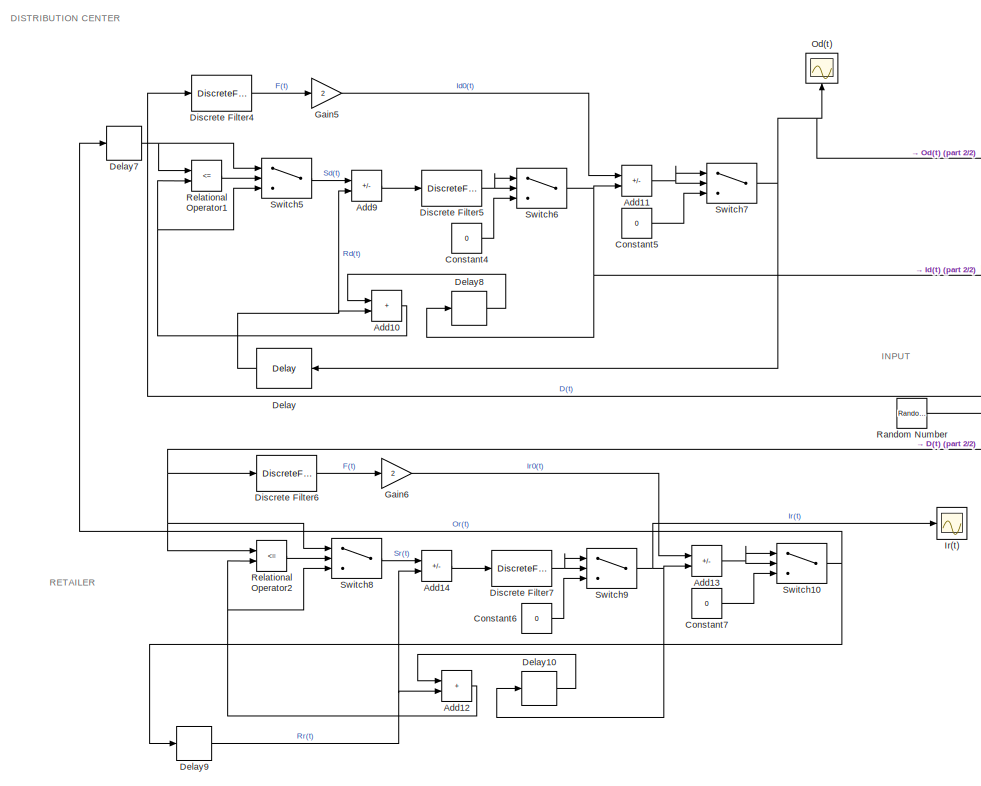
[diagram: root canvas - part 1/2, left side, full height]
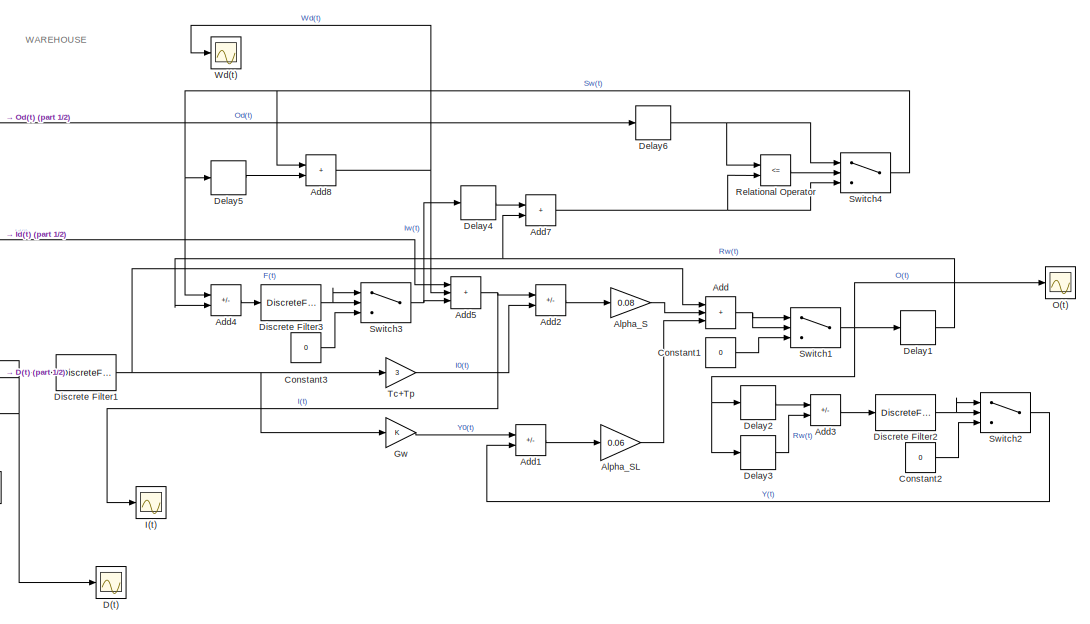
[diagram: root canvas - part 2/2, right side, full height]
MODEL slx_604841b5aac4
KIND model
CONFIG AbsTol = auto
CONFIG EnableMultiTasking = off
CONFIG FixedStep = auto
CONFIG MaxStep = auto
CONFIG MinStep = auto
CONFIG RelTol = 1e-3
CONFIG SampleTimeConstraint = Unconstrained
CONFIG SolverName = VariableStepAuto
CONFIG StartTime = 0.0
CONFIG StopTime = 100
BLOCK [Sum] Add
  IconShape = rectangular
  Inputs = +++
  Ports = [3, 1]
BLOCK [Sum] Add1
  IconShape = rectangular
  Inputs = +-
  Ports = [2, 1]
BLOCK [Sum] Add10
  IconShape = rectangular
  Ports = [2, 1]
BLOCK [Sum] Add11
  IconShape = rectangular
  Inputs = +-
  Ports = [2, 1]
BLOCK [Sum] Add12
  IconShape = rectangular
  Ports = [2, 1]
BLOCK [Sum] Add13
  IconShape = rectangular
  Inputs = +-
  Ports = [2, 1]
BLOCK [Sum] Add14
  IconShape = rectangular
  Inputs = -+
  Ports = [2, 1]
BLOCK [Sum] Add2
  IconShape = rectangular
  Inputs = -+
  Ports = [2, 1]
BLOCK [Sum] Add3
  IconShape = rectangular
  Inputs = +-
  Ports = [2, 1]
BLOCK [Sum] Add4
  IconShape = rectangular
  Inputs = -+
  Ports = [2, 1]
BLOCK [Sum] Add5
  IconShape = rectangular
  Inputs = +++
  Ports = [3, 1]
BLOCK [Sum] Add7
  IconShape = rectangular
  Ports = [2, 1]
BLOCK [Sum] Add8
  IconShape = rectangular
  Ports = [2, 1]
BLOCK [Sum] Add9
  IconShape = rectangular
  Inputs = -+
  Ports = [2, 1]
BLOCK [Gain] Alpha_S
  Gain = 0.08
BLOCK [Gain] Alpha_SL
  Gain = 0.06
BLOCK [Constant] Constant1
  Value = 0
BLOCK [Constant] Constant2
  Value = 0
BLOCK [Constant] Constant3
  Value = 0
BLOCK [Constant] Constant4
  Value = 0
BLOCK [Constant] Constant5
  Value = 0
BLOCK [Constant] Constant6
  Value = 0
BLOCK [Constant] Constant7
  Value = 0
BLOCK [Scope] D(t)
  Floating = off
  NumInputPorts = 1
  Ports = [1]
  ScopeSpecificationString = Simulink.scopes.TimeScopeBlockCfg('CurrentConfiguration', extmgr.ConfigurationSet(extmgr.Configuration('Core','General UI',true),extmgr.Configuration('Core','Source UI',true),extmgr.Configuration('Sources','WiredSimulink',true,'DataLoggingVariableName','ScopeData4'),extmgr.Configuration('Visuals','Time Domain',true,'SerializedDisplays',{struct('MinYLimReal','400.00000','MaxYLimReal','600.00000','Y...<+1430ch>
BLOCK [Delay] Delay
  DelayLength = 3
  InputPortMap = u0
  InputProcessing = Columns as channels (frame based)
  NameLocation = top
  Ports = [1, 1]
BLOCK [Delay] Delay1
  InitialCondition = 0
  InputPortMap = u0
  Ports = [1, 1]
BLOCK [Delay] Delay10
  DelayLength = 1
  InitialCondition = 0
  InputPortMap = u0
  Ports = [1, 1]
BLOCK [Delay] Delay2
  DelayLength = 1
  InitialCondition = 0
  InputPortMap = u0
  Ports = [1, 1]
BLOCK [Delay] Delay3
  InitialCondition = 0
  InputPortMap = u0
  Ports = [1, 1]
BLOCK [Delay] Delay4
  DelayLength = 1
  InitialCondition = 0
  InputPortMap = u0
  Ports = [1, 1]
BLOCK [Delay] Delay5
  DelayLength = 1
  InitialCondition = 0
  InputPortMap = u0
  Ports = [1, 1]
BLOCK [Delay] Delay6
  DelayLength = 1
  InitialCondition = 0
  InputPortMap = u0
  Ports = [1, 1]
BLOCK [Delay] Delay7
  DelayLength = 1
  InitialCondition = 0
  InputPortMap = u0
  Ports = [1, 1]
BLOCK [Delay] Delay8
  DelayLength = 1
  InitialCondition = 0
  InputPortMap = u0
  Ports = [1, 1]
BLOCK [Delay] Delay9
  DelayLength = 1
  InitialCondition = 0
  InputPortMap = u0
  Ports = [1, 1]
BLOCK [DiscreteFilter] Discrete Filter1
  Denominator = [1 -0.5]
  InputPortMap = u0
  Numerator = [0.5]
  Ports = [1, 1]
BLOCK [DiscreteFilter] Discrete Filter2
  Denominator = [1 -1]
  InputPortMap = u0
  Ports = [1, 1]
BLOCK [DiscreteFilter] Discrete Filter3
  Denominator = [1 -1]
  InputPortMap = u0
  Ports = [1, 1]
BLOCK [DiscreteFilter] Discrete Filter4
  Denominator = [1 -0.5]
  InputPortMap = u0
  Numerator = [0.5]
  Ports = [1, 1]
BLOCK [DiscreteFilter] Discrete Filter5
  Denominator = [1 -1]
  InputPortMap = u0
  Ports = [1, 1]
BLOCK [DiscreteFilter] Discrete Filter6
  Denominator = [1 -0.5]
  InputPortMap = u0
  Numerator = [0.5]
  Ports = [1, 1]
BLOCK [DiscreteFilter] Discrete Filter7
  Denominator = [1 -1]
  InputPortMap = u0
  Ports = [1, 1]
BLOCK [Gain] Gain5
  Gain = 2
BLOCK [Gain] Gain6
  Gain = 2
BLOCK [Gain] Gw
BLOCK [Scope] I(t)
  Floating = off
  NumInputPorts = 1
  Ports = [1]
  ScopeSpecificationString = Simulink.scopes.TimeScopeBlockCfg('CurrentConfiguration', extmgr.ConfigurationSet(extmgr.Configuration('Core','General UI',true),extmgr.Configuration('Core','Source UI',true),extmgr.Configuration('Sources','WiredSimulink',true,'DataLoggingVariableName','ScopeData2'),extmgr.Configuration('Visuals','Time Domain',true,'SerializedDisplays',{struct('MinYLimReal','-322.05565','MaxYLimReal','2898.50084',...<+1436ch>
BLOCK [Scope] Ir(t)
  Floating = off
  NumInputPorts = 1
  Ports = [1]
  ScopeSpecificationString = Simulink.scopes.TimeScopeBlockCfg('CurrentConfiguration', extmgr.ConfigurationSet(extmgr.Configuration('Core','General UI',true),extmgr.Configuration('Core','Source UI',true),extmgr.Configuration('Sources','WiredSimulink',true,'DataLoggingVariableName','ScopeData1'),extmgr.Configuration('Visuals','Time Domain',true,'SerializedDisplays',{struct('MinYLimReal','-62.5','MaxYLimReal','562.5','YLabelRea...<+1404ch>
BLOCK [Scope] O(t)
  Floating = off
  NumInputPorts = 1
  Ports = [1]
  ScopeSpecificationString = Simulink.scopes.TimeScopeBlockCfg('CurrentConfiguration', extmgr.ConfigurationSet(extmgr.Configuration('Core','General UI',true),extmgr.Configuration('Core','Source UI',true),extmgr.Configuration('Sources','WiredSimulink',true),extmgr.Configuration('Visuals','Time Domain',true,'SerializedDisplays',{struct('MinYLimReal','309.37509','MaxYLimReal','530.17145','YLabelReal','','MinYLimMag','309.37509',...<+1409ch>
BLOCK [Scope] Od(t)
  Floating = off
  NameLocation = right
  NumInputPorts = 1
  Ports = [1]
  ScopeSpecificationString = Simulink.scopes.TimeScopeBlockCfg('CurrentConfiguration', extmgr.ConfigurationSet(extmgr.Configuration('Core','General UI',true),extmgr.Configuration('Core','Source UI',true),extmgr.Configuration('Sources','WiredSimulink',true,'DataLoggingVariableName','ScopeData5'),extmgr.Configuration('Visuals','Time Domain',true,'SerializedDisplays',{struct('MinYLimReal','-128.00105','MaxYLimReal','1152.00941',...<+1412ch>
BLOCK [RandomNumber] Random Number
  Mean = 500
  SampleTime = 1
  Variance = 100
BLOCK [RelationalOperator] Relational Operator
  InputSameDT = off
  Operator = <=
  OutDataTypeStr = boolean
  Ports = [2, 1]
  RndMeth = Simplest
BLOCK [RelationalOperator] Relational Operator1
  InputSameDT = off
  Operator = <=
  OutDataTypeStr = boolean
  Ports = [2, 1]
  RndMeth = Simplest
BLOCK [RelationalOperator] Relational Operator2
  InputSameDT = off
  Operator = <=
  OutDataTypeStr = boolean
  Ports = [2, 1]
  RndMeth = Simplest
BLOCK [Switch] Switch1
  InputSameDT = off
  SaturateOnIntegerOverflow = off
BLOCK [Switch] Switch10
  Criteria = u2 > Threshold
  InputSameDT = off
  SaturateOnIntegerOverflow = off
BLOCK [Switch] Switch2
  InputSameDT = off
  SaturateOnIntegerOverflow = off
BLOCK [Switch] Switch3
  Criteria = u2 > Threshold
  InputSameDT = off
  SaturateOnIntegerOverflow = off
BLOCK [Switch] Switch4
  Criteria = u2 > Threshold
  InputSameDT = off
  SaturateOnIntegerOverflow = off
BLOCK [Switch] Switch5
  Criteria = u2 > Threshold
  InputSameDT = off
  SaturateOnIntegerOverflow = off
BLOCK [Switch] Switch6
  Criteria = u2 > Threshold
  InputSameDT = off
  SaturateOnIntegerOverflow = off
BLOCK [Switch] Switch7
  InputSameDT = off
  SaturateOnIntegerOverflow = off
BLOCK [Switch] Switch8
  Criteria = u2 > Threshold
  InputSameDT = off
  SaturateOnIntegerOverflow = off
BLOCK [Switch] Switch9
  Criteria = u2 > Threshold
  InputSameDT = off
  SaturateOnIntegerOverflow = off
BLOCK [Gain] Tc+Tp
  Gain = 3
BLOCK [Scope] Wd(t)
  Floating = off
  NumInputPorts = 1
  Ports = [1]
  ScopeSpecificationString = Simulink.scopes.TimeScopeBlockCfg('CurrentConfiguration', extmgr.ConfigurationSet(extmgr.Configuration('Core','General UI',true),extmgr.Configuration('Core','Source UI',true),extmgr.Configuration('Sources','WiredSimulink',true,'DataLoggingVariableName','ScopeData3'),extmgr.Configuration('Visuals','Time Domain',true,'SerializedDisplays',{struct('MinYLimReal','-255.38079','MaxYLimReal','2298.42713',...<+1414ch>
ANNOTATION (root): DISTRIBUTION CENTER
ANNOTATION (root): RETAILER
ANNOTATION (root): WAREHOUSE
ANNOTATION (root): INPUT
NET Add10:1 -> Relational Operator1:2, Switch5:3
NET Add11:1 -> Switch7:1, Switch7:2
NET Add12:1 -> Relational Operator2:2, Switch8:3
NET Add13:1 -> Switch10:1, Switch10:2
LINE Add14:1 -> Discrete Filter7:1
LINE Add1:1 -> Alpha_SL:1
LINE Add2:1 -> Alpha_S:1
LINE Add3:1 -> Discrete Filter2:1
LINE Add4:1 -> Discrete Filter3:1
NET Add5:1 -> Add2:1, I(t):1
NET Add7:1 -> Relational Operator:2, Switch4:3
NET Add8:1 -> Add5:2, Wd(t):1
LINE Add9:1 -> Discrete Filter5:1
NET Add:1 -> Switch1:1, Switch1:2
LINE Alpha_S:1 -> Add:2
LINE Alpha_SL:1 -> Add:3
LINE Constant1:1 -> Switch1:3
LINE Constant2:1 -> Switch2:3
LINE Constant3:1 -> Switch3:3
LINE Constant4:1 -> Switch6:3
LINE Constant5:1 -> Switch7:3
LINE Constant6:1 -> Switch9:3
LINE Constant7:1 -> Switch10:3
LINE Delay10:1 -> Add12:1
NET Delay1:1 -> Add4:2, Add7:2
LINE Delay2:1 -> Add3:1
LINE Delay3:1 -> Add3:2
LINE Delay4:1 -> Add7:1
LINE Delay5:1 -> Add8:2
NET Delay6:1 -> Relational Operator:1, Switch4:1
NET Delay7:1 -> Relational Operator1:1, Switch5:1
LINE Delay8:1 -> Add10:1
NET Delay9:1 -> Add12:2, Add14:2
NET Delay:1 -> Add10:2, Add9:2
NET Discrete Filter1:1 -> Add:1, Gw:1, Tc+Tp:1
NET Discrete Filter2:1 -> Switch2:1, Switch2:2
NET Discrete Filter3:1 -> Switch3:1, Switch3:2
LINE Discrete Filter4:1 -> Gain5:1
NET Discrete Filter5:1 -> Switch6:1, Switch6:2
LINE Discrete Filter6:1 -> Gain6:1
NET Discrete Filter7:1 -> Switch9:1, Switch9:2
LINE Gain5:1 -> Add11:1
LINE Gain6:1 -> Add13:1
LINE Gw:1 -> Add1:1
NET Random Number:1 -> D(t):1, Discrete Filter1:1, Discrete Filter4:1, Discrete Filter6:1, Relational Operator2:1, Switch8:1
LINE Relational Operator1:1 -> Switch5:2
LINE Relational Operator2:1 -> Switch8:2
LINE Relational Operator:1 -> Switch4:2
NET Switch10:1 -> Delay7:1, Delay9:1
NET Switch1:1 -> Delay1:1, Delay2:1, Delay3:1, O(t):1
LINE Switch2:1 -> Add1:2
NET Switch3:1 -> Add5:3, Delay4:1
NET Switch4:1 -> Add4:1, Add8:1, Delay5:1
LINE Switch5:1 -> Add9:1
NET Switch6:1 -> Add11:2, Add5:1, Delay8:1
NET Switch7:1 -> Delay6:1, Delay:1, Od(t):1
LINE Switch8:1 -> Add14:1
NET Switch9:1 -> Add13:2, Delay10:1, Ir(t):1
LINE Tc+Tp:1 -> Add2:2
note: NET lines group one-source signal fan-out (src -> all destinations, sorted); 1:1 wires keep LINE
